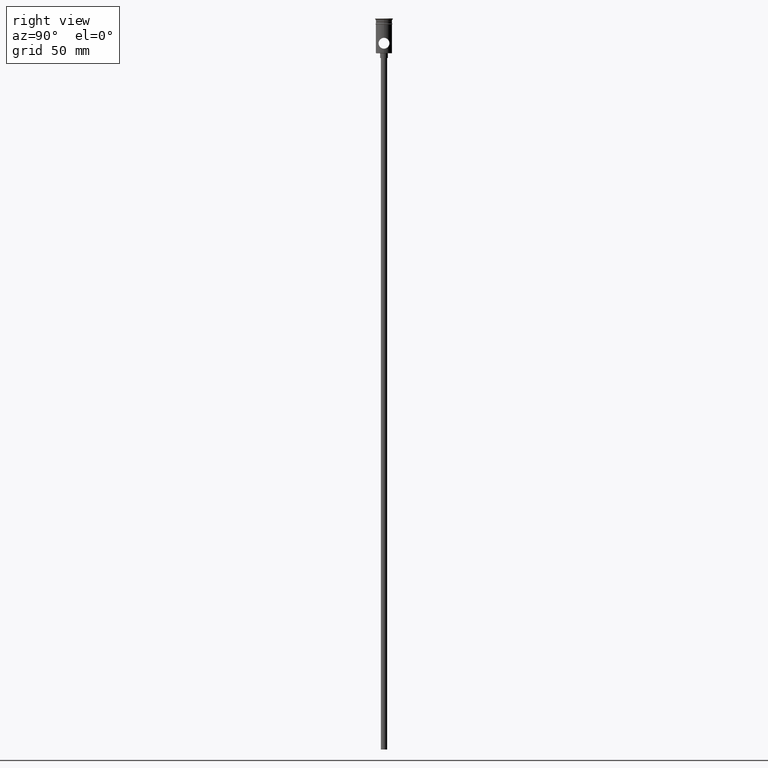
[diagram: clean part render]
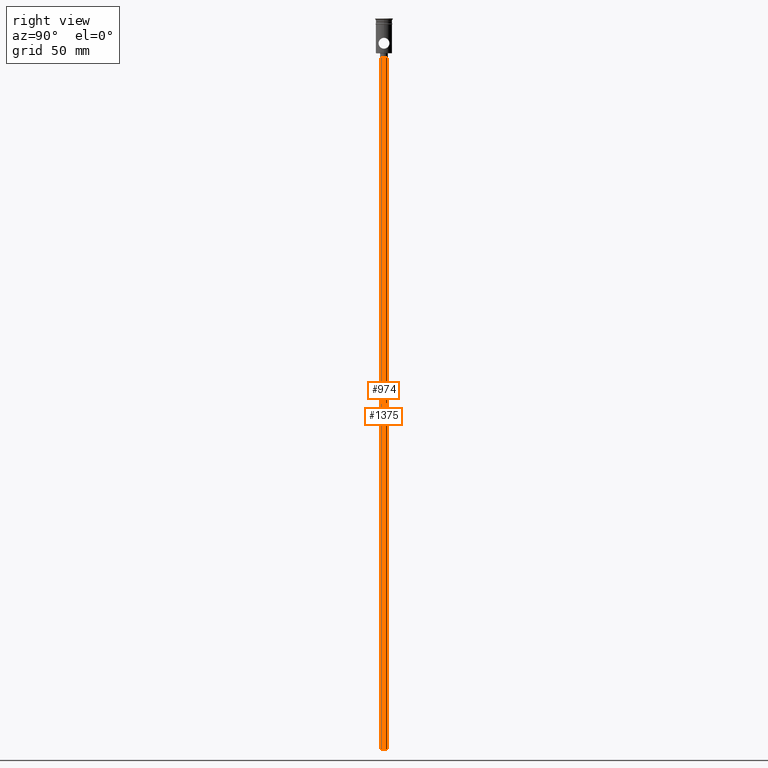
[diagram: same view with one multi-face feature highlighted, each face labeled with its STEP entity id]
A machine part, right view. The highlighted faces form ONE feature: a constant-radius fillet chain: 2 tangent blend faces with common blend radius 2 mm. The faces share edges in the B-rep.
Their STEP definitions:
[1] entity #1375 (Cylinder):
#7 = EDGE_CURVE ( 'NONE', #1132, #313, #1168, .T. ) ;
#90 = CARTESIAN_POINT ( 'NONE',  ( -2.000000000000000000, 2.449293598294706414E-16, -25.50000000000000000 ) ) ;
#97 = ORIENTED_EDGE ( 'NONE', *, *, #943, .T. ) ;
#106 = DIRECTION ( 'NONE',  ( -1.000000000000000000, 0.000000000000000000, 0.000000000000000000 ) ) ;
#163 = CARTESIAN_POINT ( 'NONE',  ( 0.000000000000000000, 0.000000000000000000, -472.5000000000000568 ) ) ;
#167 = CIRCLE ( 'NONE', #189, 2.000000000000000000 ) ;
#176 = DIRECTION ( 'NONE',  ( 1.000000000000000000, 0.000000000000000000, 0.000000000000000000 ) ) ;
#189 = AXIS2_PLACEMENT_3D ( 'NONE', #1450, #343, #230 ) ;
#192 = DIRECTION ( 'NONE',  ( 0.000000000000000000, 0.000000000000000000, -1.000000000000000000 ) ) ;
#230 = DIRECTION ( 'NONE',  ( -1.000000000000000000, 0.000000000000000000, 0.000000000000000000 ) ) ;
#313 = VERTEX_POINT ( 'NONE', #362 ) ;
#316 = CARTESIAN_POINT ( 'NONE',  ( 0.000000000000000000, 0.000000000000000000, -472.5000000000000568 ) ) ;
#324 = ORIENTED_EDGE ( 'NONE', *, *, #7, .F. ) ;
#342 = VERTEX_POINT ( 'NONE', #653 ) ;
#343 = DIRECTION ( 'NONE',  ( 0.000000000000000000, 0.000000000000000000, -1.000000000000000000 ) ) ;
#358 = DIRECTION ( 'NONE',  ( -0.000000000000000000, -0.000000000000000000, 1.000000000000000000 ) ) ;
#362 = CARTESIAN_POINT ( 'NONE',  ( 2.000000000000000000, 0.000000000000000000, -25.50000000000000000 ) ) ;
#452 = CARTESIAN_POINT ( 'NONE',  ( 2.000000000000000000, 0.000000000000000000, -472.5000000000000568 ) ) ;
#646 = VERTEX_POINT ( 'NONE', #90 ) ;
#653 = CARTESIAN_POINT ( 'NONE',  ( -2.000000000000000000, 2.449293598294706414E-16, -472.5000000000000568 ) ) ;
#658 = CIRCLE ( 'NONE', #923, 2.000000000000000000 ) ;
#713 = CARTESIAN_POINT ( 'NONE',  ( 2.000000000000000000, 0.000000000000000000, -472.5000000000000568 ) ) ;
#886 = ORIENTED_EDGE ( 'NONE', *, *, #1411, .F. ) ;
#907 = EDGE_LOOP ( 'NONE', ( #886, #97, #1366, #324 ) ) ;
#923 = AXIS2_PLACEMENT_3D ( 'NONE', #316, #192, #106 ) ;
#943 = EDGE_CURVE ( 'NONE', #342, #646, #1436, .T. ) ;
#963 = FACE_OUTER_BOUND ( 'NONE', #907, .T. ) ;
#983 = DIRECTION ( 'NONE',  ( -0.000000000000000000, -0.000000000000000000, 1.000000000000000000 ) ) ;
#1043 = AXIS2_PLACEMENT_3D ( 'NONE', #163, #1311, #176 ) ;
#1132 = VERTEX_POINT ( 'NONE', #452 ) ;
#1140 = EDGE_CURVE ( 'NONE', #646, #313, #167, .T. ) ;
#1149 = VECTOR ( 'NONE', #983, 1000.000000000000000 ) ;
#1154 = VECTOR ( 'NONE', #358, 1000.000000000000000 ) ;
#1168 = LINE ( 'NONE', #713, #1154 ) ;
#1213 = CYLINDRICAL_SURFACE ( 'NONE', #1043, 2.000000000000000000 ) ;
#1311 = DIRECTION ( 'NONE',  ( -0.000000000000000000, -0.000000000000000000, 1.000000000000000000 ) ) ;
#1327 = CARTESIAN_POINT ( 'NONE',  ( -2.000000000000000000, 2.449293598294706414E-16, -472.5000000000000568 ) ) ;
#1366 = ORIENTED_EDGE ( 'NONE', *, *, #1140, .T. ) ;
#1375 = ADVANCED_FACE ( 'NONE', ( #963 ), #1213, .T. ) ;
#1411 = EDGE_CURVE ( 'NONE', #342, #1132, #658, .T. ) ;
#1436 = LINE ( 'NONE', #1327, #1149 ) ;
#1450 = CARTESIAN_POINT ( 'NONE',  ( 0.000000000000000000, 0.000000000000000000, -25.50000000000000000 ) ) ;
[2] entity #974 (Cylinder):
#7 = EDGE_CURVE ( 'NONE', #1132, #313, #1168, .T. ) ;
#88 = DIRECTION ( 'NONE',  ( 1.000000000000000000, 0.000000000000000000, 0.000000000000000000 ) ) ;
#90 = CARTESIAN_POINT ( 'NONE',  ( -2.000000000000000000, 2.449293598294706414E-16, -25.50000000000000000 ) ) ;
#173 = CYLINDRICAL_SURFACE ( 'NONE', #680, 2.000000000000000000 ) ;
#313 = VERTEX_POINT ( 'NONE', #362 ) ;
#342 = VERTEX_POINT ( 'NONE', #653 ) ;
#358 = DIRECTION ( 'NONE',  ( -0.000000000000000000, -0.000000000000000000, 1.000000000000000000 ) ) ;
#362 = CARTESIAN_POINT ( 'NONE',  ( 2.000000000000000000, 0.000000000000000000, -25.50000000000000000 ) ) ;
#379 = CARTESIAN_POINT ( 'NONE',  ( 0.000000000000000000, 0.000000000000000000, -472.5000000000000568 ) ) ;
#383 = AXIS2_PLACEMENT_3D ( 'NONE', #1054, #836, #482 ) ;
#401 = AXIS2_PLACEMENT_3D ( 'NONE', #379, #852, #604 ) ;
#408 = EDGE_CURVE ( 'NONE', #313, #646, #638, .T. ) ;
#452 = CARTESIAN_POINT ( 'NONE',  ( 2.000000000000000000, 0.000000000000000000, -472.5000000000000568 ) ) ;
#482 = DIRECTION ( 'NONE',  ( -1.000000000000000000, 0.000000000000000000, 0.000000000000000000 ) ) ;
#568 = EDGE_LOOP ( 'NONE', ( #1255, #1048, #606, #1351 ) ) ;
#604 = DIRECTION ( 'NONE',  ( -1.000000000000000000, 0.000000000000000000, 0.000000000000000000 ) ) ;
#606 = ORIENTED_EDGE ( 'NONE', *, *, #7, .T. ) ;
#638 = CIRCLE ( 'NONE', #383, 2.000000000000000000 ) ;
#646 = VERTEX_POINT ( 'NONE', #90 ) ;
#653 = CARTESIAN_POINT ( 'NONE',  ( -2.000000000000000000, 2.449293598294706414E-16, -472.5000000000000568 ) ) ;
#680 = AXIS2_PLACEMENT_3D ( 'NONE', #1227, #761, #88 ) ;
#713 = CARTESIAN_POINT ( 'NONE',  ( 2.000000000000000000, 0.000000000000000000, -472.5000000000000568 ) ) ;
#761 = DIRECTION ( 'NONE',  ( -0.000000000000000000, -0.000000000000000000, 1.000000000000000000 ) ) ;
#836 = DIRECTION ( 'NONE',  ( 0.000000000000000000, 0.000000000000000000, -1.000000000000000000 ) ) ;
#851 = CIRCLE ( 'NONE', #401, 2.000000000000000000 ) ;
#852 = DIRECTION ( 'NONE',  ( 0.000000000000000000, 0.000000000000000000, -1.000000000000000000 ) ) ;
#943 = EDGE_CURVE ( 'NONE', #342, #646, #1436, .T. ) ;
#974 = ADVANCED_FACE ( 'NONE', ( #1313 ), #173, .T. ) ;
#983 = DIRECTION ( 'NONE',  ( -0.000000000000000000, -0.000000000000000000, 1.000000000000000000 ) ) ;
#1048 = ORIENTED_EDGE ( 'NONE', *, *, #1385, .F. ) ;
#1054 = CARTESIAN_POINT ( 'NONE',  ( 0.000000000000000000, 0.000000000000000000, -25.50000000000000000 ) ) ;
#1132 = VERTEX_POINT ( 'NONE', #452 ) ;
#1149 = VECTOR ( 'NONE', #983, 1000.000000000000000 ) ;
#1154 = VECTOR ( 'NONE', #358, 1000.000000000000000 ) ;
#1168 = LINE ( 'NONE', #713, #1154 ) ;
#1227 = CARTESIAN_POINT ( 'NONE',  ( 0.000000000000000000, 0.000000000000000000, -472.5000000000000568 ) ) ;
#1255 = ORIENTED_EDGE ( 'NONE', *, *, #943, .F. ) ;
#1313 = FACE_OUTER_BOUND ( 'NONE', #568, .T. ) ;
#1327 = CARTESIAN_POINT ( 'NONE',  ( -2.000000000000000000, 2.449293598294706414E-16, -472.5000000000000568 ) ) ;
#1351 = ORIENTED_EDGE ( 'NONE', *, *, #408, .T. ) ;
#1385 = EDGE_CURVE ( 'NONE', #1132, #342, #851, .T. ) ;
#1436 = LINE ( 'NONE', #1327, #1149 ) ;